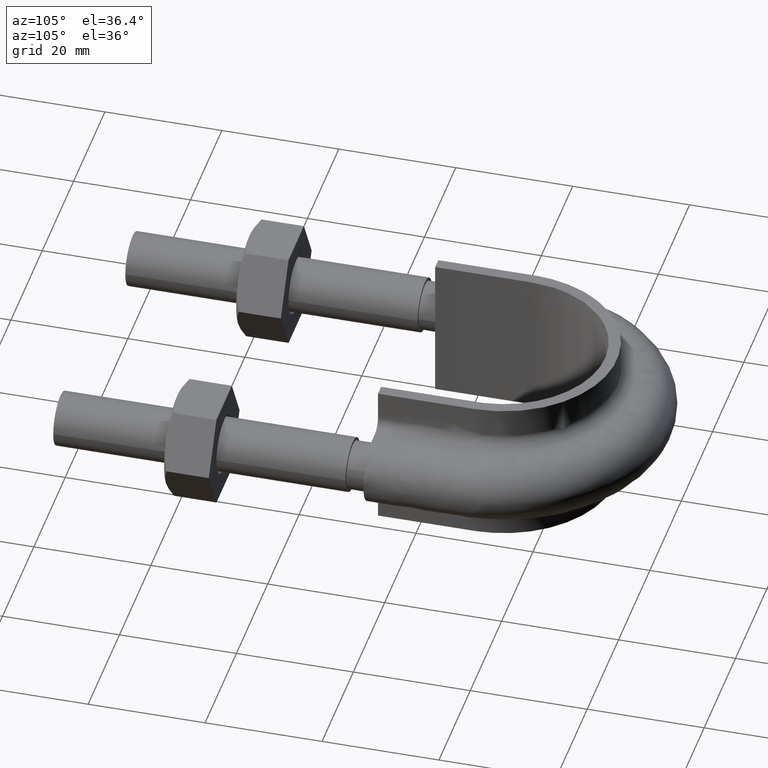
[diagram: clean part render]
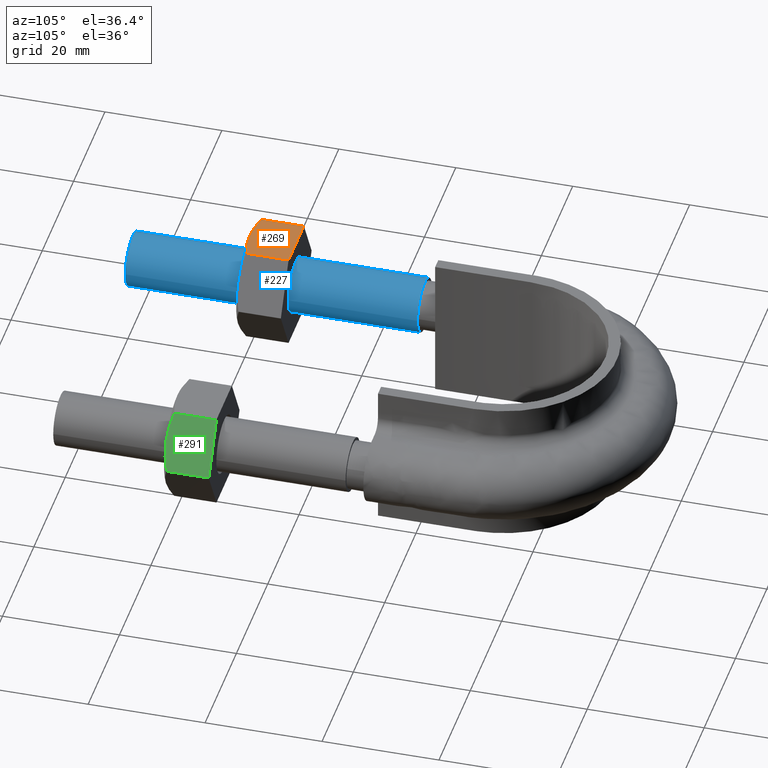
[diagram: same view with three faces highlighted in distinct colors, each labeled with its STEP entity id]
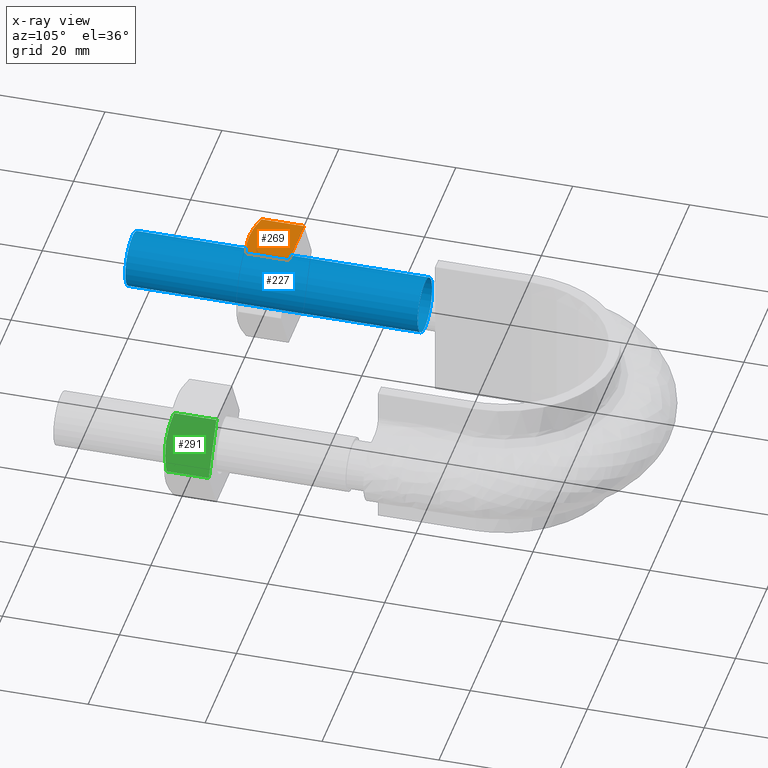
[diagram: x-ray of the same camera — body ghosted, the three highlighted faces saturated]
A machine part, auxiliary view with three faces highlighted in distinct colors.
The next image is the same camera in x-ray (body ghosted, the three faces saturated) — at least one of them is partly hidden behind the body in this view.
Their STEP definitions:

[orange] entity #269 — the highlighted planar face has unit normal (0, 0, -1).
#269 = ADVANCED_FACE( '', ( #410 ), #411, .F. );
#410 = FACE_OUTER_BOUND( '', #1407, .T. );
#411 = PLANE( '', #1408 );
#1407 = EDGE_LOOP( '', ( #1810, #1811, #1812, #1813, #1814 ) );
#1408 = AXIS2_PLACEMENT_3D( '', #1815, #1816, #1817 );
#1810 = ORIENTED_EDGE( '', *, *, #2100, .F. );
#1811 = ORIENTED_EDGE( '', *, *, #2086, .F. );
#1812 = ORIENTED_EDGE( '', *, *, #2102, .F. );
#1813 = ORIENTED_EDGE( '', *, *, #2077, .F. );
#1814 = ORIENTED_EDGE( '', *, *, #2097, .F. );
#1815 = CARTESIAN_POINT( '', ( -27.9074772881118, 28.0000000000000, 8.50000000000001 ) );
#1816 = DIRECTION( '', ( 5.55111512312578E-017, 3.06151588455594E-016, -1.00000000000000 ) );
#1817 = DIRECTION( '', ( -1.00000000000000, 0.000000000000000, -5.55111512312578E-017 ) );
#2077 = EDGE_CURVE( '', #2279, #2281, #2282, .T. );
#2086 = EDGE_CURVE( '', #2296, #2291, #2298, .T. );
#2097 = EDGE_CURVE( '', #2310, #2279, #2312, .F. );
#2100 = EDGE_CURVE( '', #2291, #2310, #2315, .T. );
#2102 = EDGE_CURVE( '', #2281, #2296, #2318, .T. );
#2279 = VERTEX_POINT( '', #2756 );
#2281 = VERTEX_POINT( '', #2758 );
#2282 = LINE( '', #2759, #2760 );
#2291 = VERTEX_POINT( '', #2772 );
#2296 = VERTEX_POINT( '', #2782 );
#2298 = B_SPLINE_CURVE_WITH_KNOTS( '', 3, ( #2784, #2785, #2786, #2787, #2788, #2789 ), .UNSPECIFIED., .F., .F., ( 4, 2, 4 ), ( 1.04083408558608E-017, 0.00246745482903606, 0.00493490965807212 ), .UNSPECIFIED. );
#2310 = VERTEX_POINT( '', #2815 );
#2312 = LINE( '', #2817, #2818 );
#2315 = B_SPLINE_CURVE_WITH_KNOTS( '', 3, ( #2827, #2828, #2829, #2830, #2831, #2832 ), .UNSPECIFIED., .F., .F., ( 4, 2, 4 ), ( 0.000000000000000, 0.00246745482903606, 0.00493490965807211 ), .UNSPECIFIED. );
#2318 = LINE( '', #2835, #2836 );
#2756 = CARTESIAN_POINT( '', ( -27.8774993593029, 28.0000000000000, 8.50000000000001 ) );
#2758 = CARTESIAN_POINT( '', ( -18.1225006406971, 28.0000000000000, 8.50000000000001 ) );
#2759 = CARTESIAN_POINT( '', ( -18.1000000000000, 28.0000000000000, 8.50000000000001 ) );
#2760 = VECTOR( '', #3113, 1000.00000000000 );
#2772 = CARTESIAN_POINT( '', ( -23.0000000000000, 20.0000000000000, 8.50000000000001 ) );
#2782 = CARTESIAN_POINT( '', ( -18.1225006406971, 20.7505553499465, 8.50000000000001 ) );
#2784 = CARTESIAN_POINT( '', ( -18.1225006406971, 20.7505553499465, 8.50000000000001 ) );
#2785 = CARTESIAN_POINT( '', ( -18.9194282933227, 20.5215585493657, 8.50000000000001 ) );
#2786 = CARTESIAN_POINT( '', ( -19.7225568243372, 20.3328582843707, 8.50000000000001 ) );
#2787 = CARTESIAN_POINT( '', ( -21.3466937523143, 20.0716504305290, 8.50000000000001 ) );
#2788 = CARTESIAN_POINT( '', ( -22.1678340498093, 20.0000000000000, 8.50000000000001 ) );
#2789 = CARTESIAN_POINT( '', ( -23.0000000000000, 20.0000000000000, 8.50000000000001 ) );
#2815 = CARTESIAN_POINT( '', ( -27.8774993593029, 20.7505553499465, 8.50000000000001 ) );
#2817 = CARTESIAN_POINT( '', ( -27.8774993593029, 28.0000000000000, 8.50000000000001 ) );
#2818 = VECTOR( '', #3145, 1000.00000000000 );
#2827 = CARTESIAN_POINT( '', ( -23.0000000000000, 20.0000000000000, 8.50000000000001 ) );
#2828 = CARTESIAN_POINT( '', ( -23.8321659501907, 20.0000000000000, 8.50000000000001 ) );
#2829 = CARTESIAN_POINT( '', ( -24.6533062476857, 20.0716504305290, 8.50000000000001 ) );
#2830 = CARTESIAN_POINT( '', ( -26.2774431756629, 20.3328582843707, 8.50000000000001 ) );
#2831 = CARTESIAN_POINT( '', ( -27.0805717066773, 20.5215585493657, 8.50000000000001 ) );
#2832 = CARTESIAN_POINT( '', ( -27.8774993593029, 20.7505553499465, 8.50000000000001 ) );
#2835 = CARTESIAN_POINT( '', ( -18.1225006406971, 28.0000000000000, 8.50000000000001 ) );
#2836 = VECTOR( '', #3150, 1000.00000000000 );
#3113 = DIRECTION( '', ( 1.00000000000000, -2.44921270764475E-016, 5.55111512312577E-017 ) );
#3145 = DIRECTION( '', ( -2.44921270764475E-016, -1.00000000000000, -3.06151588455594E-016 ) );
#3150 = DIRECTION( '', ( -2.44921270764475E-016, -1.00000000000000, -3.06151588455594E-016 ) );

[blue] entity #227 — the highlighted cylindrical surface (bore or boss wall) has radius 4.6 mm, axis along (-0, -1, -0).
#227 = ADVANCED_FACE( '', ( #316, #317 ), #318, .T. );
#316 = FACE_OUTER_BOUND( '', #1164, .T. );
#317 = FACE_OUTER_BOUND( '', #1165, .T. );
#318 = CYLINDRICAL_SURFACE( '', #1166, 4.60000000000000 );
#1164 = EDGE_LOOP( '', ( #1534 ) );
#1165 = EDGE_LOOP( '', ( #1535 ) );
#1166 = AXIS2_PLACEMENT_3D( '', #1536, #1537, #1538 );
#1534 = ORIENTED_EDGE( '', *, *, #2025, .F. );
#1535 = ORIENTED_EDGE( '', *, *, #2026, .T. );
#1536 = CARTESIAN_POINT( '', ( -23.0000000000000, 50.0000000000000, 1.54147324787392E-014 ) );
#1537 = DIRECTION( '', ( -2.44921270764475E-016, -1.00000000000000, -3.06151588455594E-016 ) );
#1538 = DIRECTION( '', ( 1.00000000000000, -2.44921270764475E-016, -3.74915180455534E-032 ) );
#2025 = EDGE_CURVE( '', #2195, #2195, #2196, .T. );
#2026 = EDGE_CURVE( '', #2197, #2197, #2198, .T. );
#2195 = VERTEX_POINT( '', #2593 );
#2196 = CIRCLE( '', #2594, 4.60000000000000 );
#2197 = VERTEX_POINT( '', #2595 );
#2198 = CIRCLE( '', #2596, 4.60000000000000 );
#2593 = CARTESIAN_POINT( '', ( -18.4000000000000, 4.50655138206635E-015, 1.07153055959459E-016 ) );
#2594 = AXIS2_PLACEMENT_3D( '', #3031, #3032, #3033 );
#2595 = CARTESIAN_POINT( '', ( -18.4000000000000, 50.0000000000000, 1.54147324787392E-014 ) );
#2596 = AXIS2_PLACEMENT_3D( '', #3034, #3035, #3036 );
#3031 = CARTESIAN_POINT( '', ( -23.0000000000000, 5.63318922758293E-015, 1.07153055959459E-016 ) );
#3032 = DIRECTION( '', ( -2.44921270764475E-016, -1.00000000000000, -3.06151588455594E-016 ) );
#3033 = DIRECTION( '', ( 1.00000000000000, -2.44921270764475E-016, -3.48747654037229E-032 ) );
#3034 = CARTESIAN_POINT( '', ( -23.0000000000000, 50.0000000000000, 1.54147324787392E-014 ) );
#3035 = DIRECTION( '', ( -2.44921270764475E-016, -1.00000000000000, -3.06151588455594E-016 ) );
#3036 = DIRECTION( '', ( 1.00000000000000, -2.44921270764475E-016, -3.48747654037229E-032 ) );

[green] entity #291 — the highlighted planar face has unit normal (-0.866, 0, -0.5).
#291 = ADVANCED_FACE( '', ( #459 ), #460, .F. );
#459 = FACE_OUTER_BOUND( '', #1456, .T. );
#460 = PLANE( '', #1457 );
#1456 = EDGE_LOOP( '', ( #1976, #1977, #1978, #1979, #1980 ) );
#1457 = AXIS2_PLACEMENT_3D( '', #1981, #1982, #1983 );
#1976 = ORIENTED_EDGE( '', *, *, #2138, .F. );
#1977 = ORIENTED_EDGE( '', *, *, #2151, .F. );
#1978 = ORIENTED_EDGE( '', *, *, #2133, .F. );
#1979 = ORIENTED_EDGE( '', *, *, #2130, .F. );
#1980 = ORIENTED_EDGE( '', *, *, #2154, .F. );
#1981 = CARTESIAN_POINT( '', ( 27.9074772881118, 28.0000000000000, 8.50000000000001 ) );
#1982 = DIRECTION( '', ( -0.866025403784439, 3.65183836637000E-016, -0.500000000000000 ) );
#1983 = DIRECTION( '', ( -0.500000000000000, -2.02717751827675E-032, 0.866025403784439 ) );
#2130 = EDGE_CURVE( '', #2368, #2354, #2370, .T. );
#2133 = EDGE_CURVE( '', #2354, #2371, #2375, .T. );
#2138 = EDGE_CURVE( '', #2381, #2383, #2384, .T. );
#2151 = EDGE_CURVE( '', #2371, #2381, #2400, .T. );
#2154 = EDGE_CURVE( '', #2383, #2368, #2404, .F. );
#2354 = VERTEX_POINT( '', #2908 );
#2368 = VERTEX_POINT( '', #2925 );
#2370 = LINE( '', #2927, #2928 );
#2371 = VERTEX_POINT( '', #2929 );
#2375 = LINE( '', #2934, #2935 );
#2381 = VERTEX_POINT( '', #2946 );
#2383 = VERTEX_POINT( '', #2948 );
#2384 = B_SPLINE_CURVE_WITH_KNOTS( '', 3, ( #2949, #2950, #2951, #2952, #2953, #2954 ), .UNSPECIFIED., .F., .F., ( 4, 2, 4 ), ( 7.75791922889773E-018, 0.00246745482903606, 0.00493490965807210 ), .UNSPECIFIED. );
#2400 = B_SPLINE_CURVE_WITH_KNOTS( '', 3, ( #2989, #2990, #2991, #2992, #2993, #2994 ), .UNSPECIFIED., .F., .F., ( 4, 2, 4 ), ( 2.40005881473229E-017, 0.00246745482903607, 0.00493490965807212 ), .UNSPECIFIED. );
#2404 = LINE( '', #2999, #3000 );
#2908 = CARTESIAN_POINT( '', ( 32.7999656118192, 28.0000000000000, 0.0259616479013516 ) );
#2925 = CARTESIAN_POINT( '', ( 27.9224662525163, 28.0000000000000, 8.47403835209864 ) );
#2927 = CARTESIAN_POINT( '', ( 27.9112159321677, 28.0000000000000, 8.49352447854375 ) );
#2928 = VECTOR( '', #3196, 1000.00000000000 );
#2929 = CARTESIAN_POINT( '', ( 32.7999656118192, 20.7505553499465, 0.0259616479013483 ) );
#2934 = CARTESIAN_POINT( '', ( 32.7999656118192, 28.0000000000000, 0.0259616479013521 ) );
#2935 = VECTOR( '', #3201, 1000.00000000000 );
#2946 = CARTESIAN_POINT( '', ( 30.3612159321677, 20.0000000000000, 4.25000000000001 ) );
#2948 = CARTESIAN_POINT( '', ( 27.9224662525163, 20.7505553499465, 8.47403835209863 ) );
#2949 = CARTESIAN_POINT( '', ( 30.3612159321677, 20.0000000000000, 4.25000000000001 ) );
#2950 = CARTESIAN_POINT( '', ( 29.9451329570723, 20.0000000000000, 4.97067685302959 ) );
#2951 = CARTESIAN_POINT( '', ( 29.5345628083249, 20.0716504305290, 5.68180521073132 ) );
#2952 = CARTESIAN_POINT( '', ( 28.7224943443363, 20.3328582843706, 7.08834904958398 ) );
#2953 = CARTESIAN_POINT( '', ( 28.3209300788291, 20.5215585493656, 7.78387875994651 ) );
#2954 = CARTESIAN_POINT( '', ( 27.9224662525163, 20.7505553499465, 8.47403835209861 ) );
#2989 = CARTESIAN_POINT( '', ( 32.7999656118192, 20.7505553499465, 0.0259616479013660 ) );
#2990 = CARTESIAN_POINT( '', ( 32.4015017855063, 20.5215585493656, 0.716121240053468 ) );
#2991 = CARTESIAN_POINT( '', ( 31.9999375199991, 20.3328582843706, 1.41165095041603 ) );
#2992 = CARTESIAN_POINT( '', ( 31.1878690560105, 20.0716504305290, 2.81819478926869 ) );
#2993 = CARTESIAN_POINT( '', ( 30.7772989072631, 20.0000000000000, 3.52932314697043 ) );
#2994 = CARTESIAN_POINT( '', ( 30.3612159321677, 20.0000000000000, 4.25000000000001 ) );
#2999 = CARTESIAN_POINT( '', ( 27.9224662525163, 28.0000000000000, 8.47403835209864 ) );
#3000 = VECTOR( '', #3234, 1000.00000000000 );
#3196 = DIRECTION( '', ( 0.500000000000000, 1.42674417629266E-016, -0.866025403784439 ) );
#3201 = DIRECTION( '', ( -2.44921270764475E-016, -1.00000000000000, -3.06151588455594E-016 ) );
#3234 = DIRECTION( '', ( -2.44921270764475E-016, -1.00000000000000, -3.06151588455594E-016 ) );